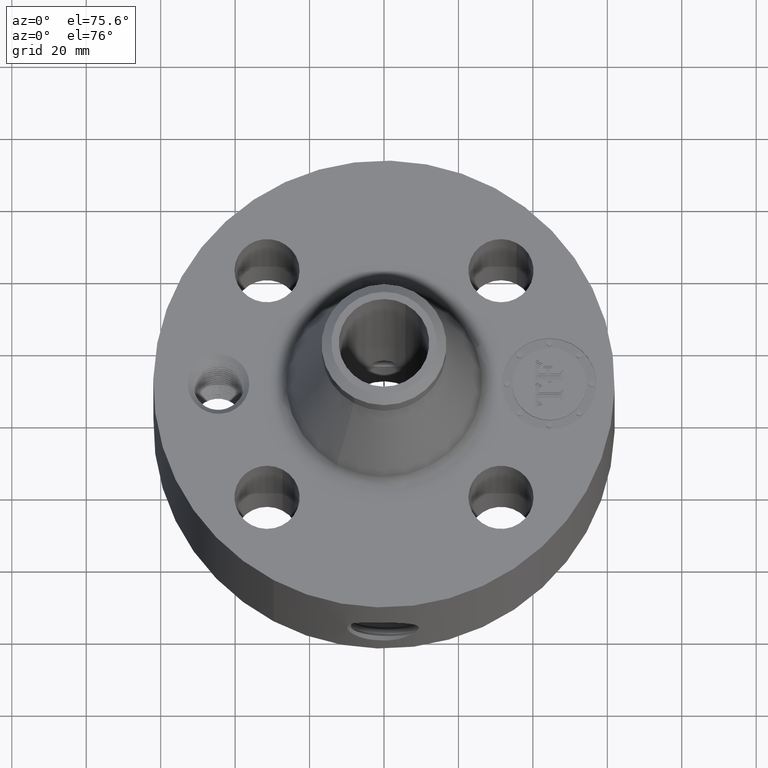
[diagram: clean part render]
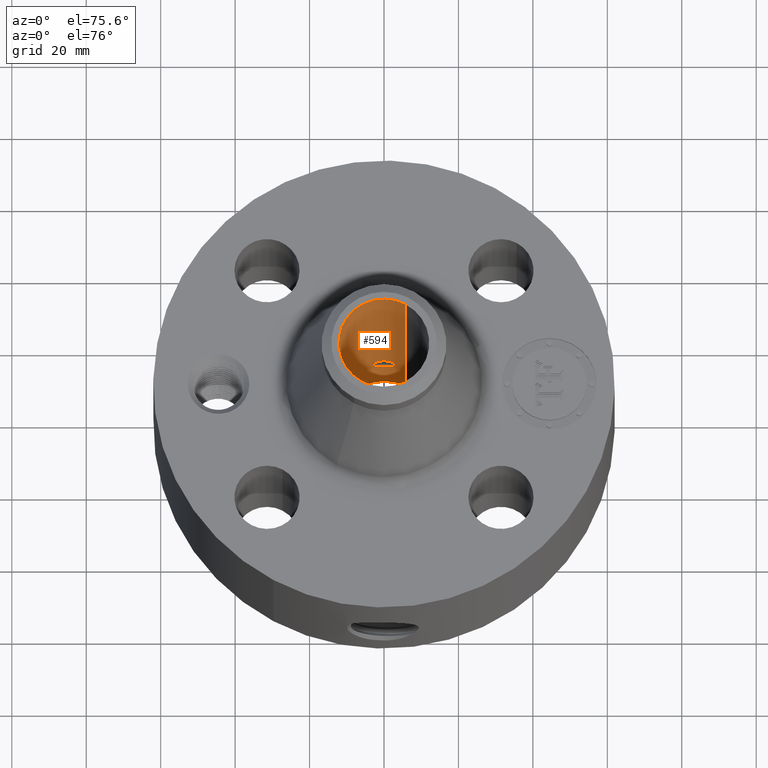
[diagram: same view with one face highlighted and labeled with its STEP entity id]
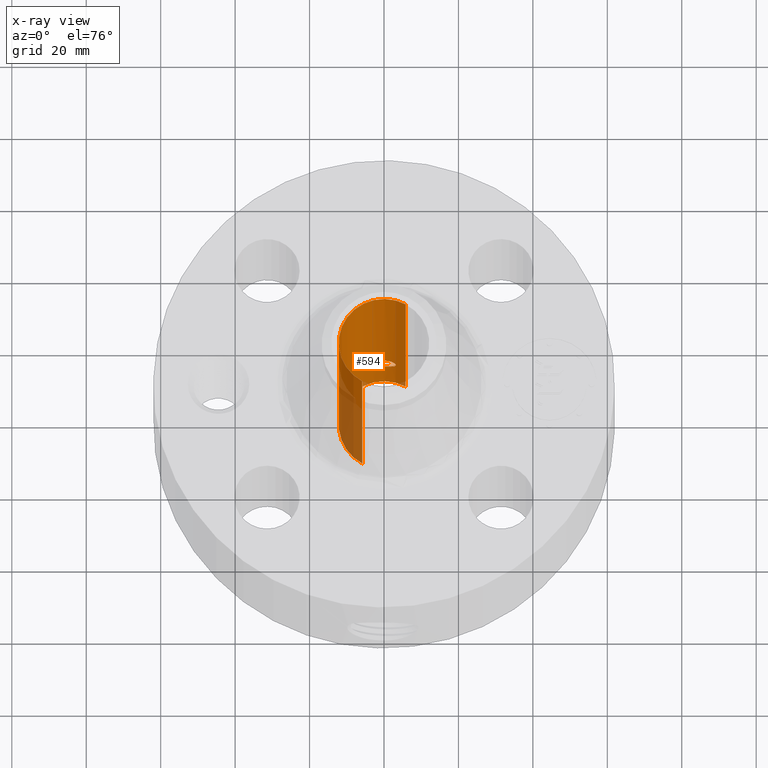
[diagram: x-ray of the same camera — body ghosted, the highlighted face saturated]
A machine part, auxiliary view. The second image highlights one B-rep face of the part: STEP entity #594.
The next image is the same camera in x-ray: the body ghosted, the highlighted face saturated — about 22% of this face is hidden behind the body in this view.
In plain terms, the highlighted cylindrical surface (partial cylindrical patch) has radius 12.1539 mm, axis along (0, 0, -1).
Its self-contained STEP definition (entity closure, byte-faithful):
#232=AXIS2_PLACEMENT_3D('Cylinder Axis2P3D',#229,#230,#231) ;
#533=AXIS2_PLACEMENT_3D('Circle Axis2P3D',#531,#532,$) ;
#543=AXIS2_PLACEMENT_3D('Circle Axis2P3D',#541,#542,$) ;
#229=CARTESIAN_POINT('Axis2P3D Location',(0.,0.,1.75000000001)) ;
#238=CARTESIAN_POINT('Vertex',(0.229405120223,0.419923255866,3.50000000001)) ;
#240=CARTESIAN_POINT('Vertex',(-0.229405120223,-0.419923255866,3.50000000001)) ;
#243=CARTESIAN_POINT('Line Origine',(0.229405120223,0.419923255866,1.75000000001)) ;
#247=CARTESIAN_POINT('Vertex',(0.229405120223,0.419923255866,0.)) ;
#254=CARTESIAN_POINT('Vertex',(-0.229405120223,-0.419923255866,0.)) ;
#257=CARTESIAN_POINT('Line Origine',(-0.229405120223,-0.419923255866,1.75000000001)) ;
#531=CARTESIAN_POINT('Axis2P3D Location',(0.,0.,3.50000000001)) ;
#541=CARTESIAN_POINT('Axis2P3D Location',(0.,0.,-5.59482469102E-016)) ;
#553=CARTESIAN_POINT('Control Point',(0.109697820237,0.465755985723,0.809928192329)) ;
#554=CARTESIAN_POINT('Control Point',(0.104177837694,0.467056087217,0.820032452598)) ;
#555=CARTESIAN_POINT('Control Point',(0.0975045174817,0.4685415176,0.82948277863)) ;
#556=CARTESIAN_POINT('Control Point',(0.0897779513569,0.470117583999,0.838115233889)) ;
#557=CARTESIAN_POINT('Control Point',(0.0639315916554,0.474752036692,0.861044024492)) ;
#558=CARTESIAN_POINT('Control Point',(0.0311967031055,0.478288694724,0.874375537067)) ;
#559=CARTESIAN_POINT('Control Point',(0.00751284533751,0.479346773796,0.878048837579)) ;
#560=CARTESIAN_POINT('Control Point',(-0.0421723244775,0.478056230607,0.873890146295)) ;
#561=CARTESIAN_POINT('Control Point',(-0.0843742163018,0.471748522023,0.847508902809)) ;
#562=CARTESIAN_POINT('Control Point',(-0.102414130012,0.467700997156,0.828362962602)) ;
#563=CARTESIAN_POINT('Control Point',(-0.1241118348,0.462216658789,0.788480753724)) ;
#564=CARTESIAN_POINT('Control Point',(-0.126979028361,0.46132253213,0.743525813874)) ;
#565=CARTESIAN_POINT('Control Point',(-0.124533991093,0.462035987705,0.724459390938)) ;
#566=CARTESIAN_POINT('Control Point',(-0.118623789208,0.463653684584,0.706410684284)) ;
#567=CARTESIAN_POINT('Control Point',(-0.109697820237,0.465755985723,0.690071807677)) ;
#568=CARTESIAN_POINT('Vertex',(0.109697820237,0.465755985723,0.809928192329)) ;
#570=CARTESIAN_POINT('Vertex',(-0.109697820237,0.465755985723,0.690071807677)) ;
#574=CARTESIAN_POINT('Control Point',(-0.109697820237,0.465755985723,0.690071807677)) ;
#575=CARTESIAN_POINT('Control Point',(-0.104177837694,0.467056087217,0.679967547408)) ;
#576=CARTESIAN_POINT('Control Point',(-0.0975045174809,0.4685415176,0.670517221375)) ;
#577=CARTESIAN_POINT('Control Point',(-0.0897779513576,0.470117583999,0.661884766118)) ;
#578=CARTESIAN_POINT('Control Point',(-0.0639315916562,0.474752036692,0.638955975515)) ;
#579=CARTESIAN_POINT('Control Point',(-0.0311967031065,0.478288694724,0.62562446294)) ;
#580=CARTESIAN_POINT('Control Point',(-0.00751284533569,0.479346773796,0.621951162427)) ;
#581=CARTESIAN_POINT('Control Point',(0.0421723244816,0.478056230607,0.626109853712)) ;
#582=CARTESIAN_POINT('Control Point',(0.0843742163073,0.471748522022,0.652491097201)) ;
#583=CARTESIAN_POINT('Control Point',(0.102414130009,0.467700997157,0.671637037398)) ;
#584=CARTESIAN_POINT('Control Point',(0.124111834799,0.462216658789,0.711519246278)) ;
#585=CARTESIAN_POINT('Control Point',(0.126979028361,0.46132253213,0.75647418613)) ;
#586=CARTESIAN_POINT('Control Point',(0.124533991092,0.462035987706,0.77554060907)) ;
#587=CARTESIAN_POINT('Control Point',(0.118623789208,0.463653684584,0.793589315723)) ;
#588=CARTESIAN_POINT('Control Point',(0.109697820237,0.465755985723,0.809928192329)) ;
#230=DIRECTION('Axis2P3D Direction',(0.,0.,-0.0393700787402)) ;
#231=DIRECTION('Axis2P3D XDirection',(-0.0188750212049,-0.0345504945626,0.)) ;
#244=DIRECTION('Vector Direction',(0.,0.,-0.0393700787402)) ;
#258=DIRECTION('Vector Direction',(0.,0.,-0.0393700787402)) ;
#532=DIRECTION('Axis2P3D Direction',(0.,0.,-0.0393700787402)) ;
#542=DIRECTION('Axis2P3D Direction',(0.,0.,-0.0393700787402)) ;
#245=VECTOR('Line Direction',#244,0.0393700787402) ;
#259=VECTOR('Line Direction',#258,0.0393700787402) ;
#547=ORIENTED_EDGE('',*,*,#535,.F.) ;
#548=ORIENTED_EDGE('',*,*,#261,.T.) ;
#549=ORIENTED_EDGE('',*,*,#545,.T.) ;
#550=ORIENTED_EDGE('',*,*,#249,.F.) ;
#591=ORIENTED_EDGE('',*,*,#572,.F.) ;
#592=ORIENTED_EDGE('',*,*,#589,.F.) ;
#593=FACE_BOUND('',#590,.T.) ;
#594=ADVANCED_FACE('PartBody',(#551,#593),#233,.F.) ;
#552=B_SPLINE_CURVE_WITH_KNOTS('',5,(#553,#554,#555,#556,#557,#558,#559,#560,#561,#562,#563,#564,#565,#566,#567),.UNSPECIFIED.,.F.,.U.,(6,3,3,3,6),(0.,2.0810688804,6.22036448478,10.8026371747,14.1677848196),.UNSPECIFIED.) ;
#573=B_SPLINE_CURVE_WITH_KNOTS('',5,(#574,#575,#576,#577,#578,#579,#580,#581,#582,#583,#584,#585,#586,#587,#588),.UNSPECIFIED.,.F.,.U.,(6,3,3,3,6),(0.,2.08106888051,6.22036448477,10.8026371752,14.1677848199),.UNSPECIFIED.) ;
#534=CIRCLE('generated circle',#533,0.478500000002) ;
#544=CIRCLE('generated circle',#543,0.478500000002) ;
#233=CYLINDRICAL_SURFACE('generated cylinder',#232,0.478500000002) ;
#249=EDGE_CURVE('',#239,#248,#246,.T.) ;
#261=EDGE_CURVE('',#241,#255,#260,.T.) ;
#535=EDGE_CURVE('',#241,#239,#534,.T.) ;
#545=EDGE_CURVE('',#255,#248,#544,.T.) ;
#572=EDGE_CURVE('',#569,#571,#552,.T.) ;
#589=EDGE_CURVE('',#571,#569,#573,.T.) ;
#546=EDGE_LOOP('',(#547,#548,#549,#550)) ;
#590=EDGE_LOOP('',(#591,#592)) ;
#551=FACE_OUTER_BOUND('',#546,.T.) ;
#246=LINE('Line',#243,#245) ;
#260=LINE('Line',#257,#259) ;
#239=VERTEX_POINT('',#238) ;
#241=VERTEX_POINT('',#240) ;
#248=VERTEX_POINT('',#247) ;
#255=VERTEX_POINT('',#254) ;
#569=VERTEX_POINT('',#568) ;
#571=VERTEX_POINT('',#570) ;